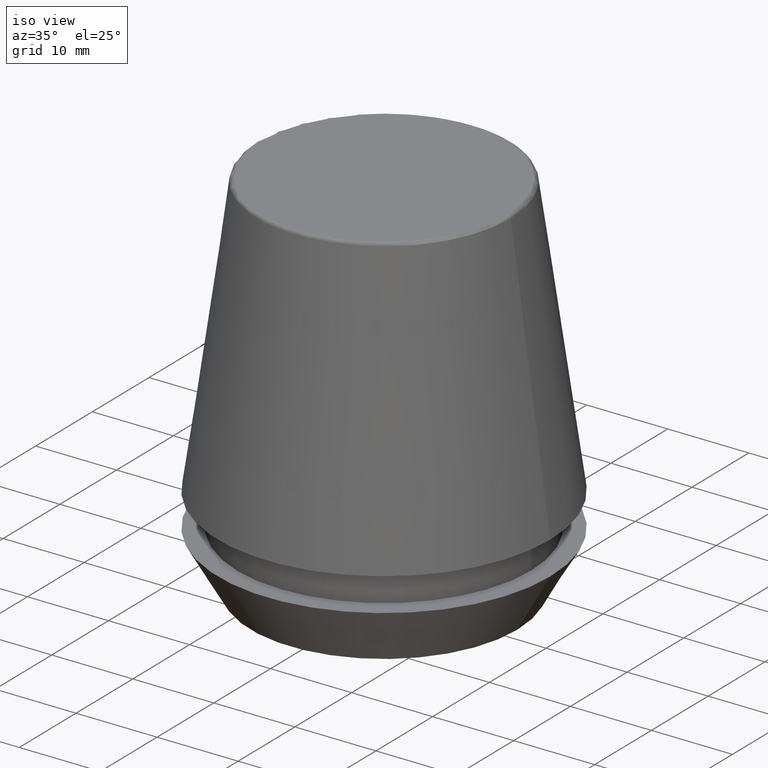
[diagram: clean part render]
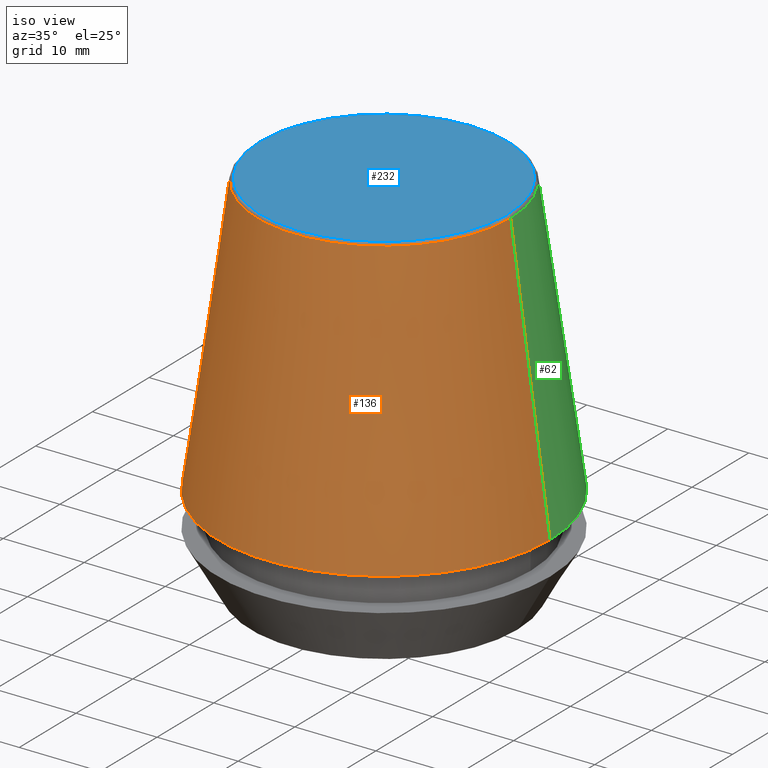
[diagram: same view with three faces highlighted in distinct colors, each labeled with its STEP entity id]
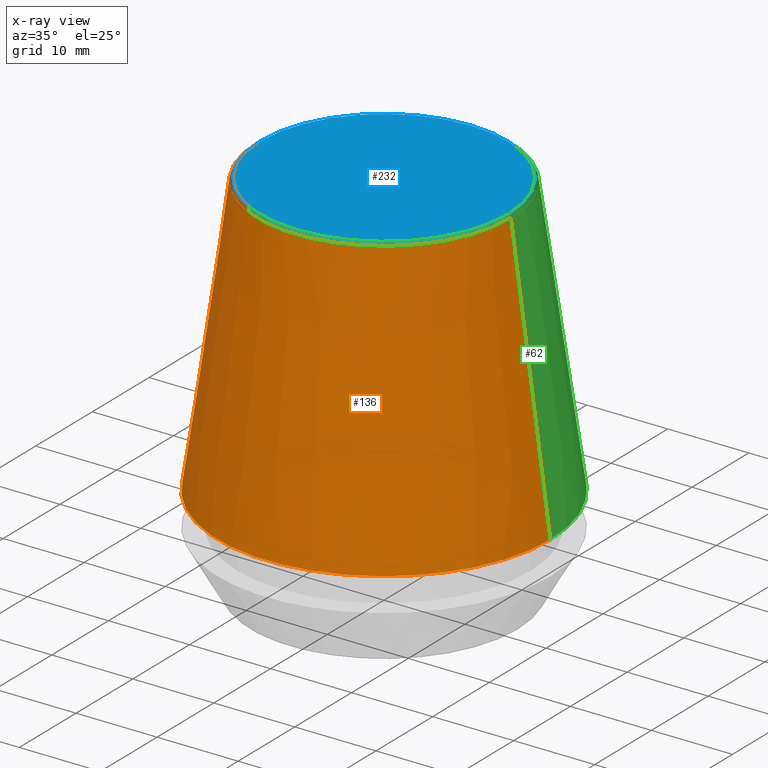
[diagram: x-ray of the same camera — body ghosted, the three highlighted faces saturated]
A machine part, iso view with three faces highlighted in distinct colors.
The next image is the same camera in x-ray (body ghosted, the three faces saturated) — at least one of them is partly hidden behind the body in this view.
Their STEP definitions:

[orange] entity #136 — the highlighted conical surface has half-angle 8 deg.
#9 = EDGE_CURVE ( 'NONE', #340, #305, #217, .T. ) ;
#17 = ORIENTED_EDGE ( 'NONE', *, *, #87, .T. ) ;
#26 = CARTESIAN_POINT ( 'NONE',  ( 0.0000000000000000000, 0.0000000000000000000, 11.09999999999999800 ) ) ;
#28 = CARTESIAN_POINT ( 'NONE',  ( 20.50032537154048700, 2.510565784773633700E-015, 11.09999999999999800 ) ) ;
#29 = DIRECTION ( 'NONE',  ( 1.000000000000000000, 0.0000000000000000000, 0.0000000000000000000 ) ) ;
#35 = EDGE_LOOP ( 'NONE', ( #191, #355, #17, #322 ) ) ;
#49 = EDGE_CURVE ( 'NONE', #281, #340, #372, .T. ) ;
#53 = DIRECTION ( 'NONE',  ( -0.1391731009600587200, 0.0000000000000000000, -0.9902680687415712500 ) ) ;
#72 = AXIS2_PLACEMENT_3D ( 'NONE', #156, #126, #325 ) ;
#78 = CARTESIAN_POINT ( 'NONE',  ( 0.0000000000000000000, 0.0000000000000000000, 11.09999999999999800 ) ) ;
#87 = EDGE_CURVE ( 'NONE', #281, #179, #311, .T. ) ;
#96 = AXIS2_PLACEMENT_3D ( 'NONE', #26, #288, #29 ) ;
#126 = DIRECTION ( 'NONE',  ( -0.0000000000000000000, -0.0000000000000000000, 1.000000000000000000 ) ) ;
#129 = DIRECTION ( 'NONE',  ( 0.0000000000000000000, 0.0000000000000000000, -1.000000000000000000 ) ) ;
#133 = VECTOR ( 'NONE', #350, 1000.000000000000000 ) ;
#134 = CARTESIAN_POINT ( 'NONE',  ( -20.50032537154048700, 0.0000000000000000000, 11.09999999999999800 ) ) ;
#136 = ADVANCED_FACE ( 'NONE', ( #301 ), #290, .T. ) ;
#149 = DIRECTION ( 'NONE',  ( -1.000000000000000000, 0.0000000000000000000, 0.0000000000000000000 ) ) ;
#156 = CARTESIAN_POINT ( 'NONE',  ( 0.0000000000000000000, 0.0000000000000000000, 45.65566924038402900 ) ) ;
#179 = VERTEX_POINT ( 'NONE', #134 ) ;
#191 = ORIENTED_EDGE ( 'NONE', *, *, #9, .F. ) ;
#194 = CARTESIAN_POINT ( 'NONE',  ( 15.64384277279740400, 2.213191991290356800E-015, 45.65566924038402900 ) ) ;
#217 = LINE ( 'NONE', #351, #133 ) ;
#226 = CARTESIAN_POINT ( 'NONE',  ( -15.64384277279740400, 0.0000000000000000000, 45.65566924038402900 ) ) ;
#249 = CIRCLE ( 'NONE', #96, 20.50032537154048700 ) ;
#275 = AXIS2_PLACEMENT_3D ( 'NONE', #78, #129, #149 ) ;
#281 = VERTEX_POINT ( 'NONE', #226 ) ;
#288 = DIRECTION ( 'NONE',  ( -0.0000000000000000000, -0.0000000000000000000, 1.000000000000000000 ) ) ;
#290 = CONICAL_SURFACE ( 'NONE', #275, 20.50032537154048700, 0.1396263401595396200 ) ;
#301 = FACE_OUTER_BOUND ( 'NONE', #35, .T. ) ;
#305 = VERTEX_POINT ( 'NONE', #28 ) ;
#311 = LINE ( 'NONE', #380, #324 ) ;
#322 = ORIENTED_EDGE ( 'NONE', *, *, #336, .T. ) ;
#324 = VECTOR ( 'NONE', #53, 1000.000000000000000 ) ;
#325 = DIRECTION ( 'NONE',  ( 1.000000000000000000, 0.0000000000000000000, 0.0000000000000000000 ) ) ;
#336 = EDGE_CURVE ( 'NONE', #179, #305, #249, .T. ) ;
#340 = VERTEX_POINT ( 'NONE', #194 ) ;
#350 = DIRECTION ( 'NONE',  ( 0.1391731009600587200, 1.704378926181473400E-017, -0.9902680687415712500 ) ) ;
#351 = CARTESIAN_POINT ( 'NONE',  ( 20.50032537154048700, 2.510565784773633700E-015, 11.09999999999999800 ) ) ;
#355 = ORIENTED_EDGE ( 'NONE', *, *, #49, .F. ) ;
#372 = CIRCLE ( 'NONE', #72, 15.64384277279740400 ) ;
#380 = CARTESIAN_POINT ( 'NONE',  ( -20.50032537154048700, 0.0000000000000000000, 11.09999999999999800 ) ) ;

[blue] entity #232 — the highlighted planar face has unit normal (0, 0, -1).
#12 = CARTESIAN_POINT ( 'NONE',  ( 15.24773554530077600, 0.0000000000000000000, 46.00000000000000000 ) ) ;
#31 = EDGE_CURVE ( 'NONE', #246, #359, #223, .T. ) ;
#54 = CARTESIAN_POINT ( 'NONE',  ( -15.24773554530077600, 1.891563625393435400E-015, 46.00000000000000000 ) ) ;
#77 = AXIS2_PLACEMENT_3D ( 'NONE', #276, #323, #352 ) ;
#81 = DIRECTION ( 'NONE',  ( -1.000000000000000000, 0.0000000000000000000, -0.0000000000000000000 ) ) ;
#93 = CARTESIAN_POINT ( 'NONE',  ( 0.0000000000000000000, 15.24773554530077600, 46.00000000000000000 ) ) ;
#98 = EDGE_CURVE ( 'NONE', #359, #246, #310, .T. ) ;
#102 = DIRECTION ( 'NONE',  ( 1.000000000000000000, 0.0000000000000000000, 0.0000000000000000000 ) ) ;
#128 = AXIS2_PLACEMENT_3D ( 'NONE', #93, #253, #81 ) ;
#178 = CARTESIAN_POINT ( 'NONE',  ( 0.0000000000000000000, 0.0000000000000000000, 46.00000000000000000 ) ) ;
#184 = ORIENTED_EDGE ( 'NONE', *, *, #31, .T. ) ;
#205 = AXIS2_PLACEMENT_3D ( 'NONE', #178, #291, #102 ) ;
#223 = CIRCLE ( 'NONE', #77, 15.24773554530077600 ) ;
#225 = PLANE ( 'NONE',  #128 ) ;
#232 = ADVANCED_FACE ( 'NONE', ( #266 ), #225, .F. ) ;
#246 = VERTEX_POINT ( 'NONE', #12 ) ;
#253 = DIRECTION ( 'NONE',  ( 0.0000000000000000000, 0.0000000000000000000, -1.000000000000000000 ) ) ;
#265 = ORIENTED_EDGE ( 'NONE', *, *, #98, .T. ) ;
#266 = FACE_OUTER_BOUND ( 'NONE', #378, .T. ) ;
#276 = CARTESIAN_POINT ( 'NONE',  ( 0.0000000000000000000, 0.0000000000000000000, 46.00000000000000000 ) ) ;
#291 = DIRECTION ( 'NONE',  ( -0.0000000000000000000, -0.0000000000000000000, 1.000000000000000000 ) ) ;
#310 = CIRCLE ( 'NONE', #205, 15.24773554530077600 ) ;
#323 = DIRECTION ( 'NONE',  ( -0.0000000000000000000, -0.0000000000000000000, 1.000000000000000000 ) ) ;
#352 = DIRECTION ( 'NONE',  ( 1.000000000000000000, 0.0000000000000000000, 0.0000000000000000000 ) ) ;
#359 = VERTEX_POINT ( 'NONE', #54 ) ;
#378 = EDGE_LOOP ( 'NONE', ( #184, #265 ) ) ;

[green] entity #62 — the highlighted conical surface has half-angle 8 deg.
#9 = EDGE_CURVE ( 'NONE', #340, #305, #217, .T. ) ;
#22 = ORIENTED_EDGE ( 'NONE', *, *, #144, .F. ) ;
#24 = DIRECTION ( 'NONE',  ( -0.0000000000000000000, -0.0000000000000000000, 1.000000000000000000 ) ) ;
#28 = CARTESIAN_POINT ( 'NONE',  ( 20.50032537154048700, 2.510565784773633700E-015, 11.09999999999999800 ) ) ;
#53 = DIRECTION ( 'NONE',  ( -0.1391731009600587200, 0.0000000000000000000, -0.9902680687415712500 ) ) ;
#62 = ADVANCED_FACE ( 'NONE', ( #320 ), #306, .T. ) ;
#82 = DIRECTION ( 'NONE',  ( -0.0000000000000000000, -0.0000000000000000000, 1.000000000000000000 ) ) ;
#85 = DIRECTION ( 'NONE',  ( 0.0000000000000000000, 0.0000000000000000000, -1.000000000000000000 ) ) ;
#87 = EDGE_CURVE ( 'NONE', #281, #179, #311, .T. ) ;
#112 = ORIENTED_EDGE ( 'NONE', *, *, #87, .F. ) ;
#133 = VECTOR ( 'NONE', #350, 1000.000000000000000 ) ;
#134 = CARTESIAN_POINT ( 'NONE',  ( -20.50032537154048700, 0.0000000000000000000, 11.09999999999999800 ) ) ;
#144 = EDGE_CURVE ( 'NONE', #340, #281, #283, .T. ) ;
#150 = EDGE_CURVE ( 'NONE', #305, #179, #277, .T. ) ;
#151 = CARTESIAN_POINT ( 'NONE',  ( 0.0000000000000000000, 0.0000000000000000000, 45.65566924038402900 ) ) ;
#165 = AXIS2_PLACEMENT_3D ( 'NONE', #220, #85, #183 ) ;
#179 = VERTEX_POINT ( 'NONE', #134 ) ;
#183 = DIRECTION ( 'NONE',  ( -1.000000000000000000, 0.0000000000000000000, 0.0000000000000000000 ) ) ;
#190 = CARTESIAN_POINT ( 'NONE',  ( 0.0000000000000000000, 0.0000000000000000000, 11.09999999999999800 ) ) ;
#194 = CARTESIAN_POINT ( 'NONE',  ( 15.64384277279740400, 2.213191991290356800E-015, 45.65566924038402900 ) ) ;
#203 = AXIS2_PLACEMENT_3D ( 'NONE', #151, #82, #329 ) ;
#206 = ORIENTED_EDGE ( 'NONE', *, *, #9, .T. ) ;
#217 = LINE ( 'NONE', #351, #133 ) ;
#220 = CARTESIAN_POINT ( 'NONE',  ( 0.0000000000000000000, 0.0000000000000000000, 11.09999999999999800 ) ) ;
#222 = DIRECTION ( 'NONE',  ( 1.000000000000000000, 0.0000000000000000000, 0.0000000000000000000 ) ) ;
#226 = CARTESIAN_POINT ( 'NONE',  ( -15.64384277279740400, 0.0000000000000000000, 45.65566924038402900 ) ) ;
#228 = ORIENTED_EDGE ( 'NONE', *, *, #150, .T. ) ;
#242 = AXIS2_PLACEMENT_3D ( 'NONE', #190, #24, #222 ) ;
#277 = CIRCLE ( 'NONE', #242, 20.50032537154048700 ) ;
#281 = VERTEX_POINT ( 'NONE', #226 ) ;
#283 = CIRCLE ( 'NONE', #203, 15.64384277279740400 ) ;
#305 = VERTEX_POINT ( 'NONE', #28 ) ;
#306 = CONICAL_SURFACE ( 'NONE', #165, 20.50032537154048700, 0.1396263401595396200 ) ;
#311 = LINE ( 'NONE', #380, #324 ) ;
#320 = FACE_OUTER_BOUND ( 'NONE', #383, .T. ) ;
#324 = VECTOR ( 'NONE', #53, 1000.000000000000000 ) ;
#329 = DIRECTION ( 'NONE',  ( 1.000000000000000000, 0.0000000000000000000, 0.0000000000000000000 ) ) ;
#340 = VERTEX_POINT ( 'NONE', #194 ) ;
#350 = DIRECTION ( 'NONE',  ( 0.1391731009600587200, 1.704378926181473400E-017, -0.9902680687415712500 ) ) ;
#351 = CARTESIAN_POINT ( 'NONE',  ( 20.50032537154048700, 2.510565784773633700E-015, 11.09999999999999800 ) ) ;
#380 = CARTESIAN_POINT ( 'NONE',  ( -20.50032537154048700, 0.0000000000000000000, 11.09999999999999800 ) ) ;
#383 = EDGE_LOOP ( 'NONE', ( #22, #206, #228, #112 ) ) ;